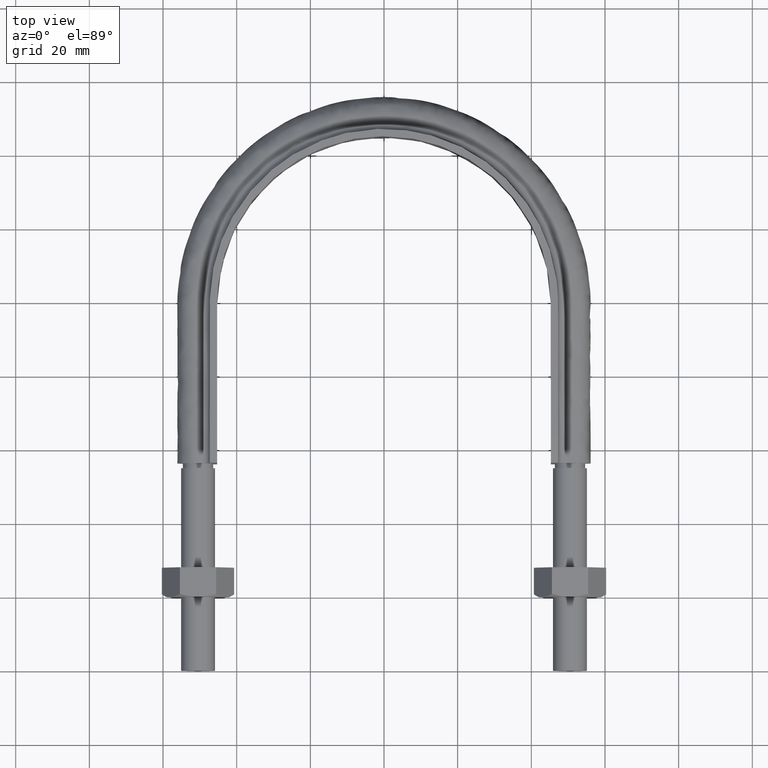
[diagram: clean part render]
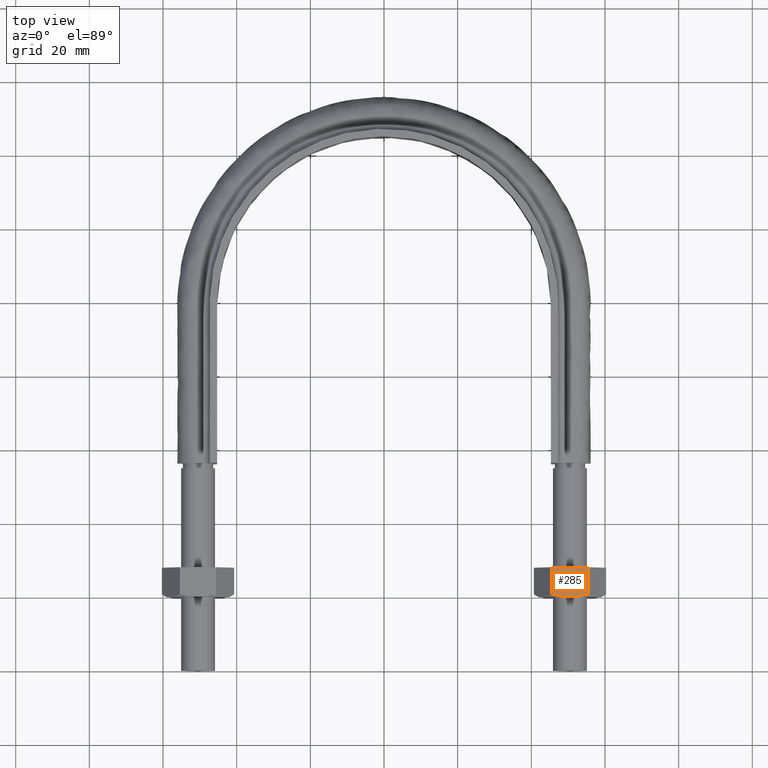
[diagram: same view with one face highlighted and labeled with its STEP entity id]
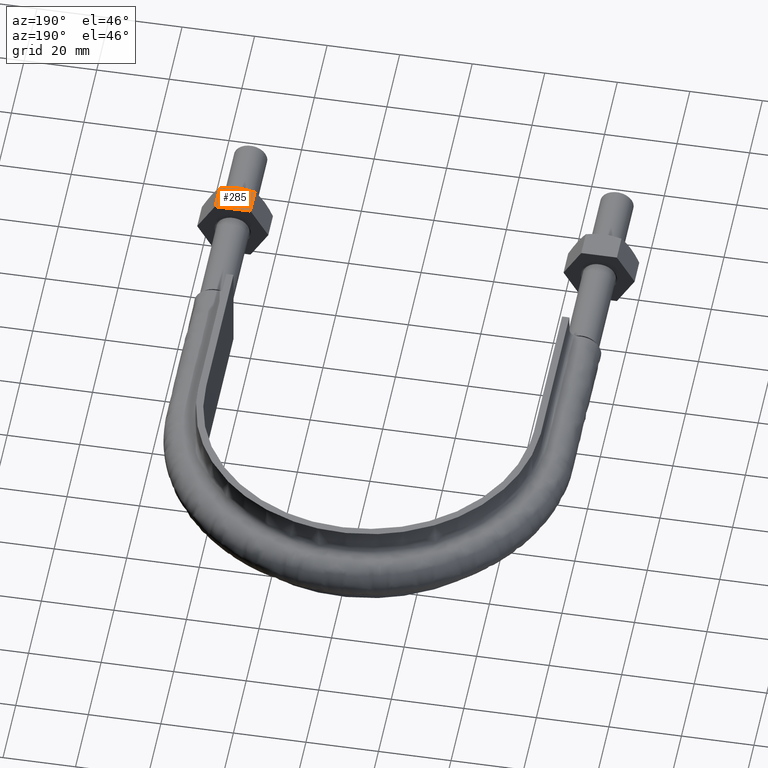
[diagram: same view with one face highlighted and labeled with its STEP entity id]
A machine part, top view. The second image highlights one B-rep face of the part: STEP entity #285.
A second angle (auxiliary view) of the same face is appended — the face is thin or edge-on in the first view.
In plain terms, the highlighted planar face has unit normal (-0, 0, -1).
Its self-contained STEP definition (entity closure, byte-faithful):
#285 = ADVANCED_FACE( '', ( #446 ), #447, .F. );
#446 = FACE_OUTER_BOUND( '', #1432, .T. );
#447 = PLANE( '', #1433 );
#1432 = EDGE_LOOP( '', ( #1922, #1923, #1924, #1925, #1926 ) );
#1433 = AXIS2_PLACEMENT_3D( '', #1927, #1928, #1929 );
#1922 = ORIENTED_EDGE( '', *, *, #2127, .F. );
#1923 = ORIENTED_EDGE( '', *, *, #2136, .F. );
#1924 = ORIENTED_EDGE( '', *, *, #2122, .F. );
#1925 = ORIENTED_EDGE( '', *, *, #2119, .F. );
#1926 = ORIENTED_EDGE( '', *, *, #2137, .F. );
#1927 = CARTESIAN_POINT( '', ( 45.5925227118882, 28.0000000000000, 8.50000000000000 ) );
#1928 = DIRECTION( '', ( -1.11022302462516E-016, 6.12303176911189E-017, -1.00000000000000 ) );
#1929 = DIRECTION( '', ( -1.00000000000000, 0.000000000000000, 1.11022302462516E-016 ) );
#2119 = EDGE_CURVE( '', #2358, #2345, #2360, .T. );
#2122 = EDGE_CURVE( '', #2345, #2361, #2365, .T. );
#2127 = EDGE_CURVE( '', #2371, #2373, #2374, .T. );
#2136 = EDGE_CURVE( '', #2361, #2371, #2385, .T. );
#2137 = EDGE_CURVE( '', #2373, #2358, #2386, .F. );
#2345 = VERTEX_POINT( '', #2958 );
#2358 = VERTEX_POINT( '', #2975 );
#2360 = LINE( '', #2977, #2978 );
#2361 = VERTEX_POINT( '', #2979 );
#2365 = LINE( '', #2984, #2985 );
#2371 = VERTEX_POINT( '', #2996 );
#2373 = VERTEX_POINT( '', #2998 );
#2374 = B_SPLINE_CURVE_WITH_KNOTS( '', 3, ( #2999, #3000, #3001, #3002, #3003, #3004 ), .UNSPECIFIED., .F., .F., ( 4, 2, 4 ), ( 0.000000000000000, 0.00246745482903606, 0.00493490965807212 ), .UNSPECIFIED. );
#2385 = B_SPLINE_CURVE_WITH_KNOTS( '', 3, ( #3027, #3028, #3029, #3030, #3031, #3032 ), .UNSPECIFIED., .F., .F., ( 4, 2, 4 ), ( 6.93889390390723E-018, 0.00246745482903606, 0.00493490965807212 ), .UNSPECIFIED. );
#2386 = LINE( '', #3033, #3034 );
#2958 = CARTESIAN_POINT( '', ( 55.3774993593029, 28.0000000000000, 8.50000000000000 ) );
#2975 = CARTESIAN_POINT( '', ( 45.6225006406971, 28.0000000000000, 8.50000000000000 ) );
#2977 = CARTESIAN_POINT( '', ( 45.6000000000000, 28.0000000000000, 8.50000000000000 ) );
#2978 = VECTOR( '', #3252, 1000.00000000000 );
#2979 = CARTESIAN_POINT( '', ( 55.3774993593029, 20.7505553499465, 8.50000000000000 ) );
#2984 = CARTESIAN_POINT( '', ( 55.3774993593029, 28.0000000000000, 8.50000000000000 ) );
#2985 = VECTOR( '', #3257, 1000.00000000000 );
#2996 = CARTESIAN_POINT( '', ( 50.5000000000000, 20.0000000000000, 8.50000000000000 ) );
#2998 = CARTESIAN_POINT( '', ( 45.6225006406971, 20.7505553499465, 8.50000000000000 ) );
#2999 = CARTESIAN_POINT( '', ( 50.5000000000000, 20.0000000000000, 8.50000000000000 ) );
#3000 = CARTESIAN_POINT( '', ( 49.6678340498093, 20.0000000000000, 8.50000000000000 ) );
#3001 = CARTESIAN_POINT( '', ( 48.8466937523143, 20.0716504305290, 8.50000000000000 ) );
#3002 = CARTESIAN_POINT( '', ( 47.2225568243371, 20.3328582843707, 8.50000000000000 ) );
#3003 = CARTESIAN_POINT( '', ( 46.4194282933227, 20.5215585493657, 8.50000000000000 ) );
#3004 = CARTESIAN_POINT( '', ( 45.6225006406971, 20.7505553499465, 8.50000000000000 ) );
#3027 = CARTESIAN_POINT( '', ( 55.3774993593029, 20.7505553499465, 8.50000000000000 ) );
#3028 = CARTESIAN_POINT( '', ( 54.5805717066773, 20.5215585493657, 8.50000000000000 ) );
#3029 = CARTESIAN_POINT( '', ( 53.7774431756629, 20.3328582843707, 8.50000000000000 ) );
#3030 = CARTESIAN_POINT( '', ( 52.1533062476857, 20.0716504305290, 8.50000000000000 ) );
#3031 = CARTESIAN_POINT( '', ( 51.3321659501907, 20.0000000000000, 8.50000000000000 ) );
#3032 = CARTESIAN_POINT( '', ( 50.5000000000000, 20.0000000000000, 8.50000000000000 ) );
#3033 = CARTESIAN_POINT( '', ( 45.6225006406971, 28.0000000000000, 8.50000000000000 ) );
#3034 = VECTOR( '', #3281, 1000.00000000000 );
#3252 = DIRECTION( '', ( 1.00000000000000, -2.44921270764475E-016, -1.11022302462516E-016 ) );
#3257 = DIRECTION( '', ( -2.44921270764475E-016, -1.00000000000000, -6.12303176911189E-017 ) );
#3281 = DIRECTION( '', ( -2.44921270764475E-016, -1.00000000000000, -6.12303176911189E-017 ) );